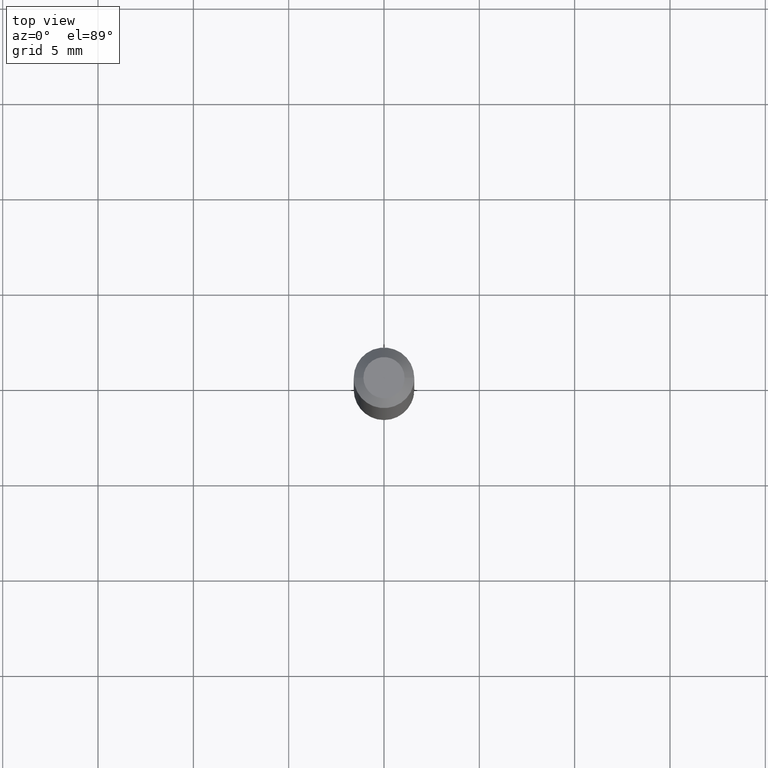
[diagram: clean part render]
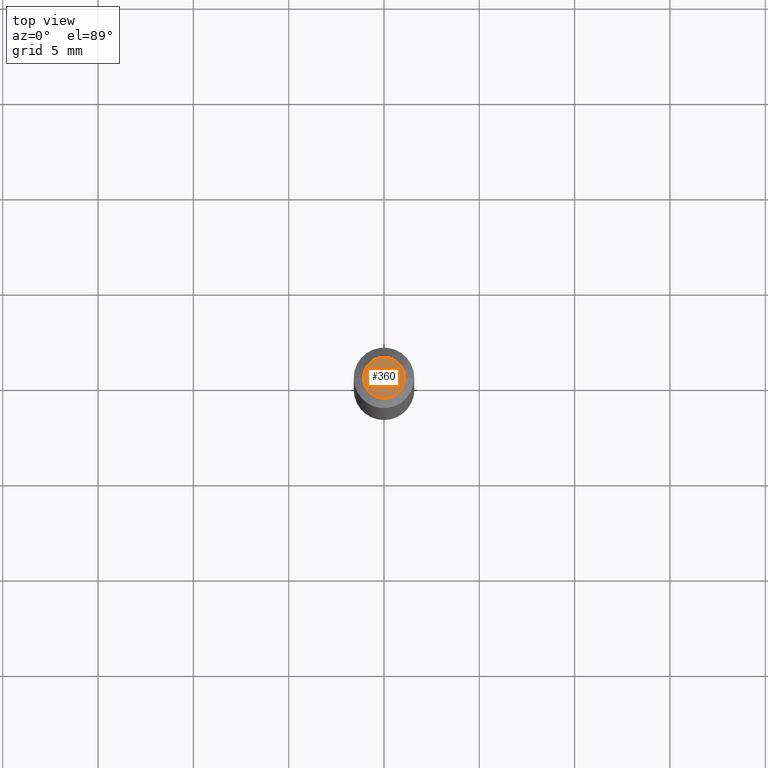
[diagram: same view with one face highlighted and labeled with its STEP entity id]
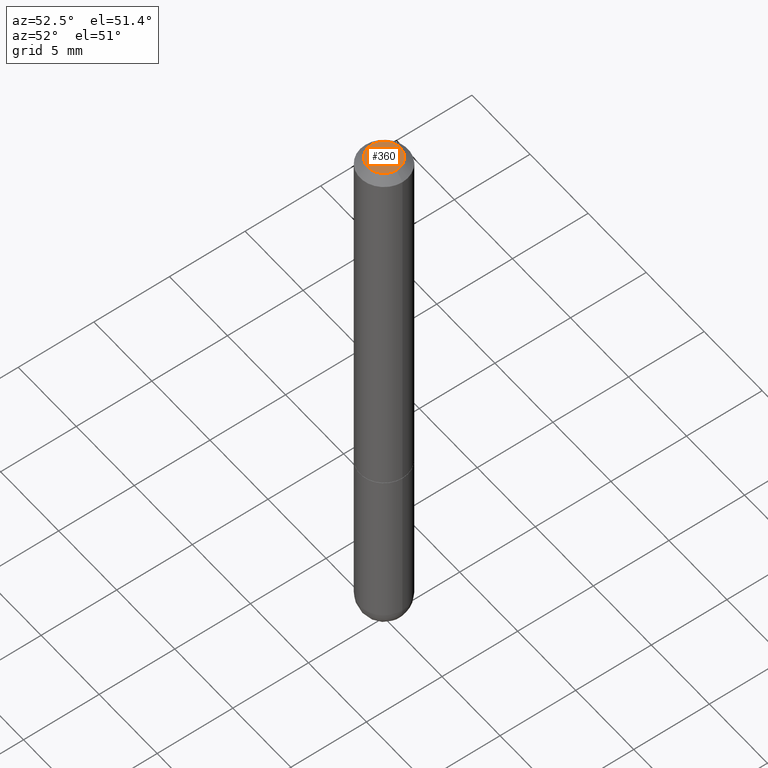
[diagram: same view with one face highlighted and labeled with its STEP entity id]
A machine part, top view. The second image highlights one B-rep face of the part: STEP entity #360.
A second angle (auxiliary view) of the same face is appended — the face is thin or edge-on in the first view.
In plain terms, the highlighted planar face has unit normal (0, -0, -1).
Its self-contained STEP definition (entity closure, byte-faithful):
#17 = ORIENTED_EDGE ( 'NONE', *, *, #331, .T. ) ;
#31 = VERTEX_POINT ( 'NONE', #272 ) ;
#32 = DIRECTION ( 'NONE',  ( 1.000000000000000000, -6.982962677686265922E-15, 4.852736867747402641E-29 ) ) ;
#35 = FACE_OUTER_BOUND ( 'NONE', #188, .T. ) ;
#58 = DIRECTION ( 'NONE',  ( -2.445468806185136597E-29, 3.491481338843145583E-15, 1.000000000000000000 ) ) ;
#60 = DIRECTION ( 'NONE',  ( -1.000000000000000000, 6.982962677686265922E-15, -4.876176775795935793E-29 ) ) ;
#63 = DIRECTION ( 'NONE',  ( -2.445468806185136597E-29, 3.491481338843145583E-15, 1.000000000000000000 ) ) ;
#98 = DIRECTION ( 'NONE',  ( 1.000000000000000000, -6.982962677686265922E-15, 4.852736867747402641E-29 ) ) ;
#138 = CARTESIAN_POINT ( 'NONE',  ( -5.219257071676098903E-45, 7.451715851902235946E-31, 2.134256245050205701E-16 ) ) ;
#151 = CIRCLE ( 'NONE', #376, 0.04249999999999968386 ) ;
#188 = EDGE_LOOP ( 'NONE', ( #17, #300 ) ) ;
#198 = CARTESIAN_POINT ( 'NONE',  ( -5.219257071676098903E-45, 7.451715851902235946E-31, 2.134256245050205701E-16 ) ) ;
#272 = CARTESIAN_POINT ( 'NONE',  ( -0.04249999999999968386, 3.316907271900965249E-16, 2.134256245050183761E-16 ) ) ;
#298 = AXIS2_PLACEMENT_3D ( 'NONE', #138, #63, #98 ) ;
#300 = ORIENTED_EDGE ( 'NONE', *, *, #373, .T. ) ;
#324 = AXIS2_PLACEMENT_3D ( 'NONE', #351, #410, #60 ) ;
#331 = EDGE_CURVE ( 'NONE', #31, #393, #406, .T. ) ;
#351 = CARTESIAN_POINT ( 'NONE',  ( 2.967759138016640869E-16, 0.04249999999999968386, -4.167514464832228844E-17 ) ) ;
#352 = PLANE ( 'NONE',  #324 ) ;
#360 = ADVANCED_FACE ( 'NONE', ( #35 ), #352, .F. ) ;
#373 = EDGE_CURVE ( 'NONE', #393, #31, #151, .T. ) ;
#376 = AXIS2_PLACEMENT_3D ( 'NONE', #198, #58, #32 ) ;
#385 = CARTESIAN_POINT ( 'NONE',  ( 0.04249999999999968386, -3.950909582714353640E-16, 2.134256245050229860E-16 ) ) ;
#393 = VERTEX_POINT ( 'NONE', #385 ) ;
#406 = CIRCLE ( 'NONE', #298, 0.04249999999999968386 ) ;
#410 = DIRECTION ( 'NONE',  ( 2.438088387897960049E-29, -3.491481338843145188E-15, -1.000000000000000000 ) ) ;